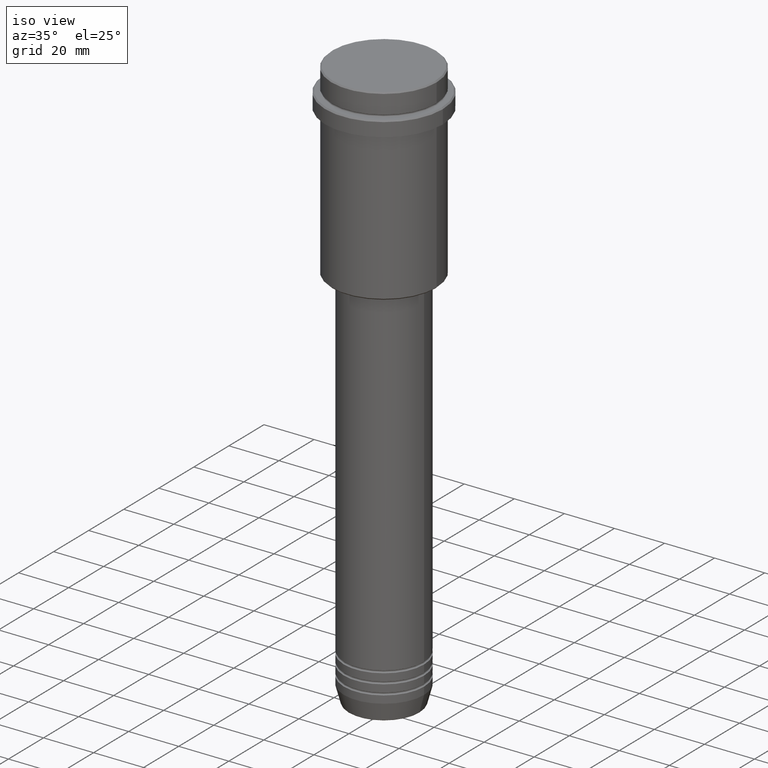
[diagram: clean part render]
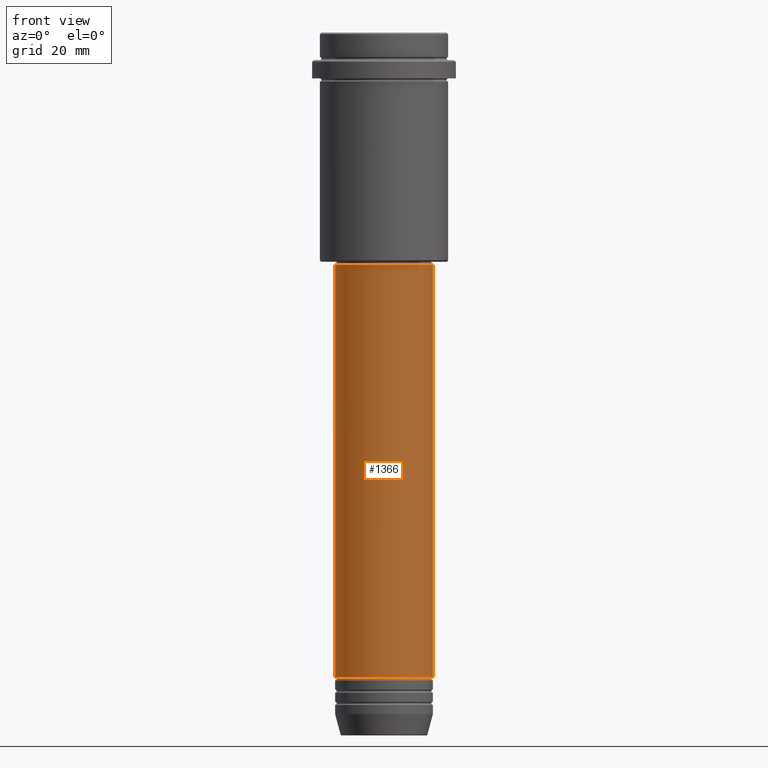
[diagram: tour spotlight — one face highlighted and labeled with its STEP entity id]
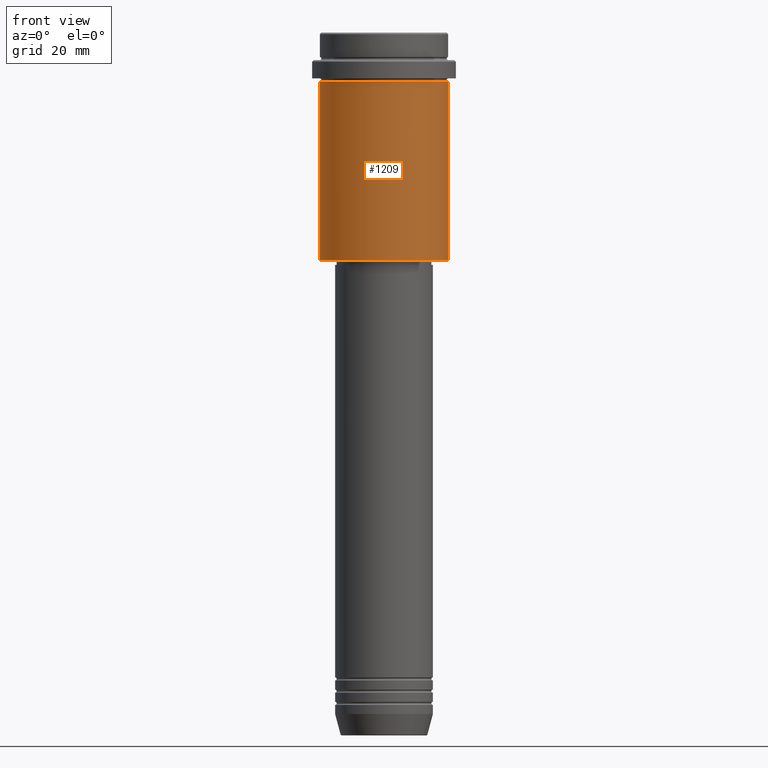
[diagram: tour spotlight — one face highlighted and labeled with its STEP entity id]
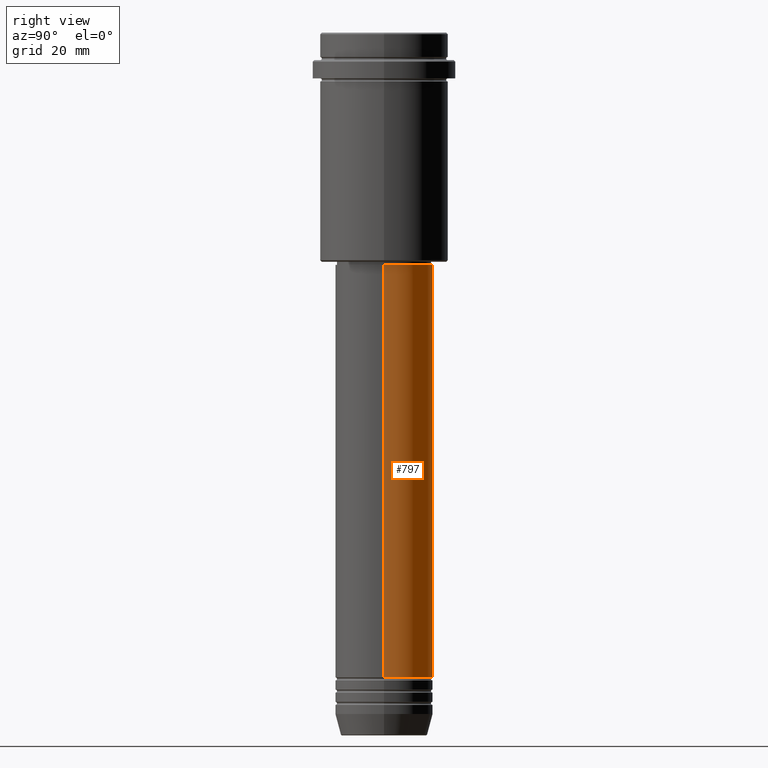
[diagram: tour spotlight — one face highlighted and labeled with its STEP entity id]
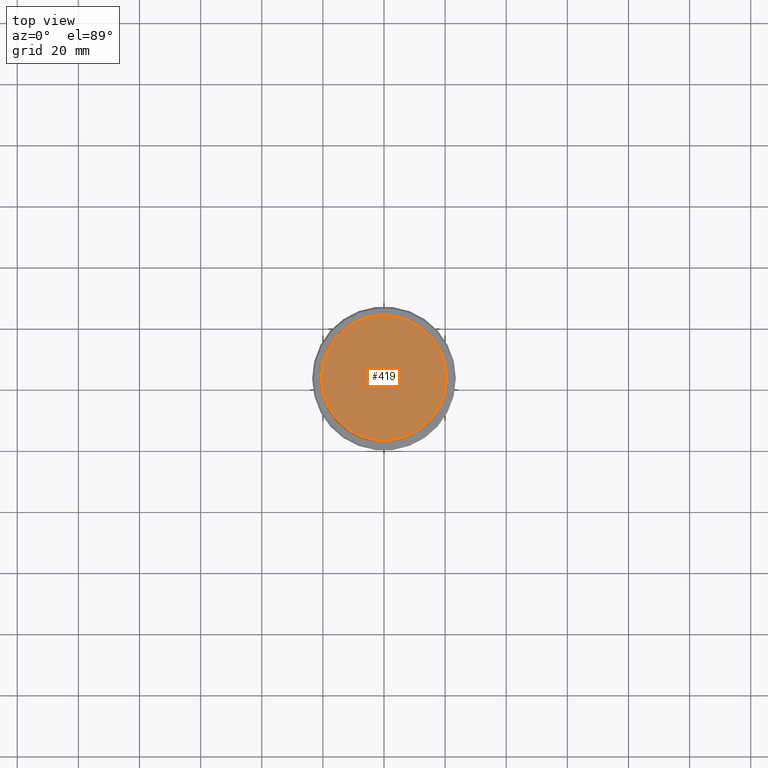
[diagram: tour spotlight — one face highlighted and labeled with its STEP entity id]
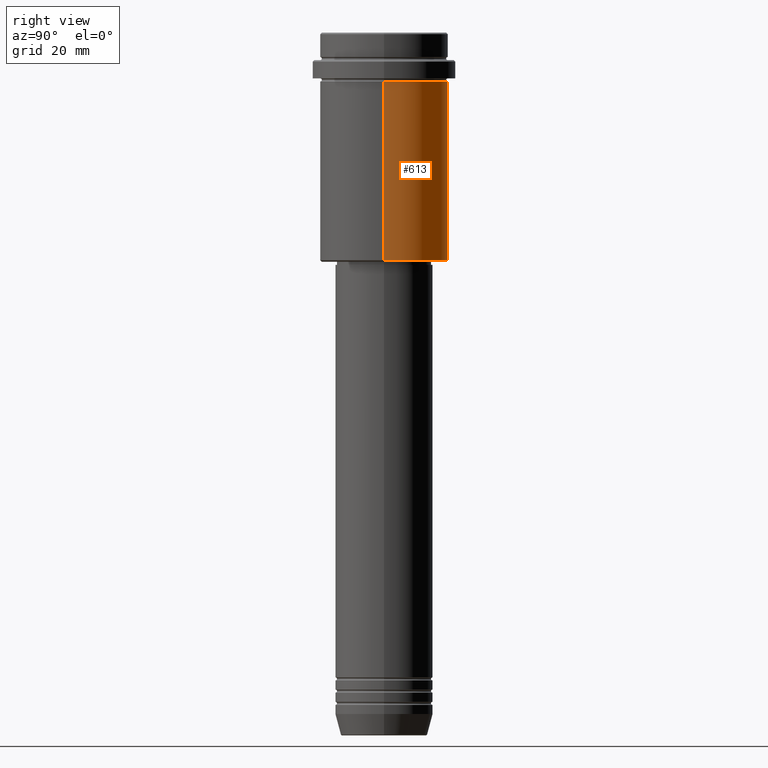
[diagram: tour spotlight — one face highlighted and labeled with its STEP entity id]
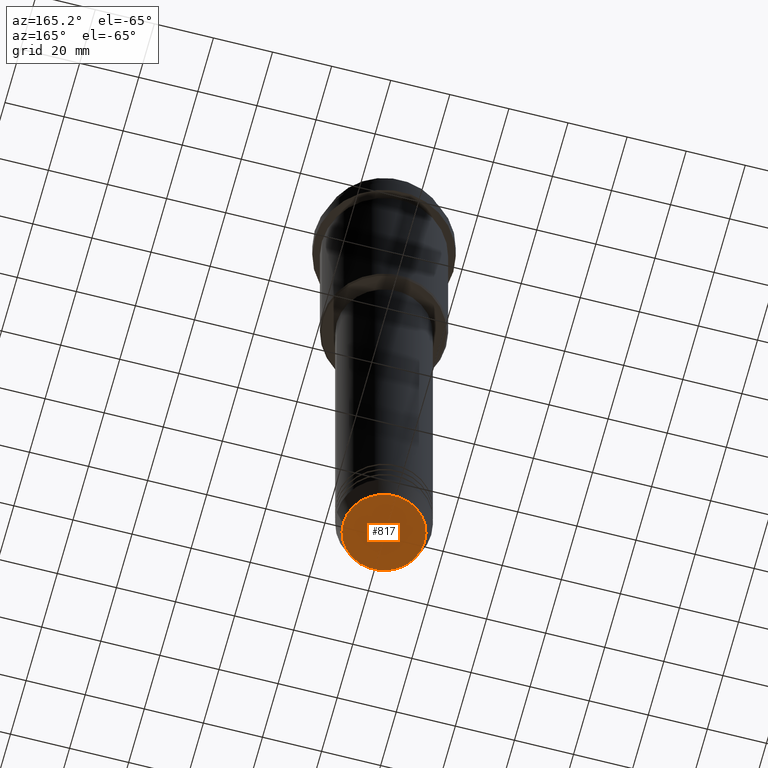
[diagram: tour spotlight — one face highlighted and labeled with its STEP entity id]
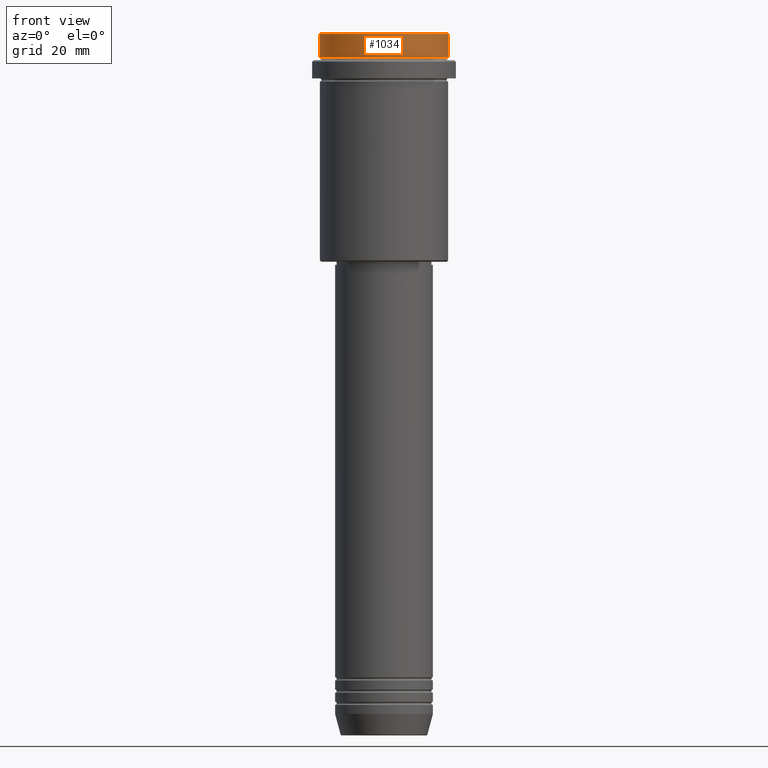
[diagram: tour spotlight — one face highlighted and labeled with its STEP entity id]
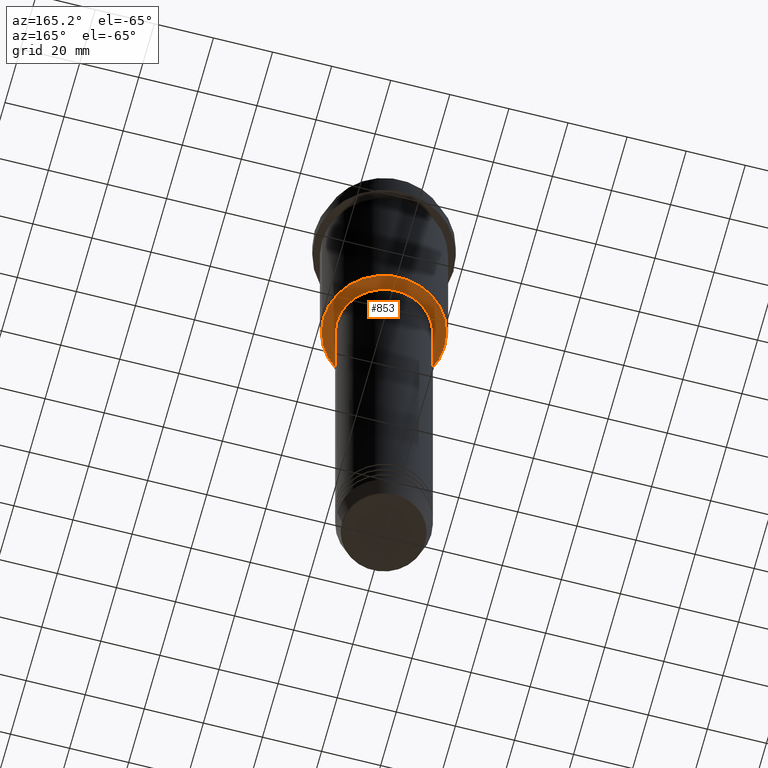
[diagram: tour spotlight — one face highlighted and labeled with its STEP entity id]
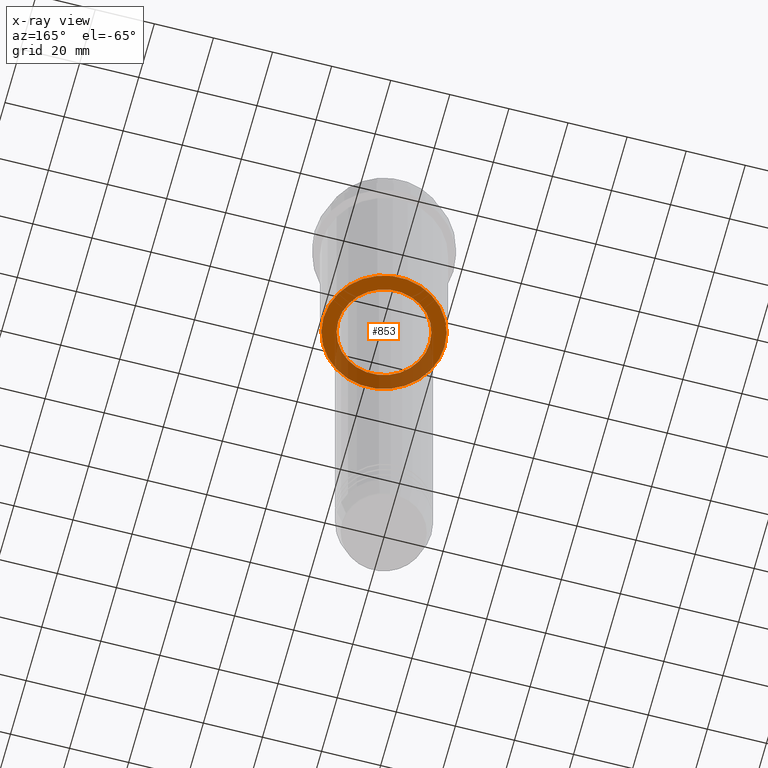
[diagram: x-ray of the same camera — body ghosted, this tour face saturated]
A machine part: a face-by-face anatomy tour. The part has 52 B-rep faces; the first image is the clean iso view, then the 8 largest visible faces are spotlighted one at a time (largest first), each with its STEP entity span.

Face 1 — front view, entity #1366. In plain terms, the highlighted cylindrical surface (partial cylindrical patch) has radius 16 mm, axis along (-0, -0, 1).
Definition (entity closure, byte-faithful):
#37 = LINE ( 'NONE', #919, #685 ) ;
#136 = EDGE_CURVE ( 'NONE', #565, #740, #1103, .T. ) ;
#163 = AXIS2_PLACEMENT_3D ( 'NONE', #534, #317, #665 ) ;
#182 = ORIENTED_EDGE ( 'NONE', *, *, #136, .F. ) ;
#204 = EDGE_CURVE ( 'NONE', #740, #1281, #1175, .T. ) ;
#281 = AXIS2_PLACEMENT_3D ( 'NONE', #1085, #449, #1200 ) ;
#317 = DIRECTION ( 'NONE',  ( -0.000000000000000000, -0.000000000000000000, 1.000000000000000000 ) ) ;
#354 = CARTESIAN_POINT ( 'NONE',  ( -16.00000000000000355, 1.959434878635765526E-15, -76.00000000000001421 ) ) ;
#385 = EDGE_LOOP ( 'NONE', ( #182, #679, #926, #865 ) ) ;
#388 = EDGE_CURVE ( 'NONE', #878, #1281, #37, .T. ) ;
#389 = CARTESIAN_POINT ( 'NONE',  ( 16.00000000000000000, 0.000000000000000000, -210.9999999999999432 ) ) ;
#449 = DIRECTION ( 'NONE',  ( -0.000000000000000000, -0.000000000000000000, 1.000000000000000000 ) ) ;
#534 = CARTESIAN_POINT ( 'NONE',  ( 0.000000000000000000, 0.000000000000000000, -76.00000000000001421 ) ) ;
#565 = VERTEX_POINT ( 'NONE', #937 ) ;
#612 = CIRCLE ( 'NONE', #281, 16.00000000000000000 ) ;
#653 = DIRECTION ( 'NONE',  ( 1.000000000000000000, 0.000000000000000000, 0.000000000000000000 ) ) ;
#663 = AXIS2_PLACEMENT_3D ( 'NONE', #760, #1191, #653 ) ;
#665 = DIRECTION ( 'NONE',  ( 1.000000000000000000, 0.000000000000000000, 0.000000000000000000 ) ) ;
#679 = ORIENTED_EDGE ( 'NONE', *, *, #1355, .T. ) ;
#685 = VECTOR ( 'NONE', #1343, 1000.000000000000000 ) ;
#728 = CARTESIAN_POINT ( 'NONE',  ( -16.00000000000000000, 1.959434878635765131E-15, 0.000000000000000000 ) ) ;
#740 = VERTEX_POINT ( 'NONE', #354 ) ;
#760 = CARTESIAN_POINT ( 'NONE',  ( 0.000000000000000000, 0.000000000000000000, 0.000000000000000000 ) ) ;
#865 = ORIENTED_EDGE ( 'NONE', *, *, #204, .F. ) ;
#878 = VERTEX_POINT ( 'NONE', #389 ) ;
#919 = CARTESIAN_POINT ( 'NONE',  ( 16.00000000000000000, 0.000000000000000000, 0.000000000000000000 ) ) ;
#926 = ORIENTED_EDGE ( 'NONE', *, *, #388, .T. ) ;
#937 = CARTESIAN_POINT ( 'NONE',  ( -16.00000000000000000, 1.959434878635765131E-15, -210.9999999999999432 ) ) ;
#982 = VECTOR ( 'NONE', #1364, 1000.000000000000000 ) ;
#986 = FACE_OUTER_BOUND ( 'NONE', #385, .T. ) ;
#1085 = CARTESIAN_POINT ( 'NONE',  ( 0.000000000000000000, 0.000000000000000000, -210.9999999999999432 ) ) ;
#1101 = CYLINDRICAL_SURFACE ( 'NONE', #663, 16.00000000000000000 ) ;
#1103 = LINE ( 'NONE', #728, #982 ) ;
#1175 = CIRCLE ( 'NONE', #163, 16.00000000000000355 ) ;
#1191 = DIRECTION ( 'NONE',  ( -0.000000000000000000, -0.000000000000000000, 1.000000000000000000 ) ) ;
#1200 = DIRECTION ( 'NONE',  ( 1.000000000000000000, 0.000000000000000000, 0.000000000000000000 ) ) ;
#1271 = CARTESIAN_POINT ( 'NONE',  ( 16.00000000000000355, 0.000000000000000000, -76.00000000000001421 ) ) ;
#1281 = VERTEX_POINT ( 'NONE', #1271 ) ;
#1343 = DIRECTION ( 'NONE',  ( -0.000000000000000000, -0.000000000000000000, 1.000000000000000000 ) ) ;
#1355 = EDGE_CURVE ( 'NONE', #565, #878, #612, .T. ) ;
#1364 = DIRECTION ( 'NONE',  ( -0.000000000000000000, -0.000000000000000000, 1.000000000000000000 ) ) ;
#1366 = ADVANCED_FACE ( 'NONE', ( #986 ), #1101, .T. ) ;

Face 2 — front view, entity #1209. In plain terms, the highlighted cylindrical surface (partial cylindrical patch) has radius 21 mm, axis along (-0, -0, 1).
Definition (entity closure, byte-faithful):
#18 = DIRECTION ( 'NONE',  ( -0.000000000000000000, -0.000000000000000000, 1.000000000000000000 ) ) ;
#22 = DIRECTION ( 'NONE',  ( 1.000000000000000000, 0.000000000000000000, 0.000000000000000000 ) ) ;
#114 = CARTESIAN_POINT ( 'NONE',  ( -20.99999999999999645, 2.571758278209441267E-15, -74.49999999999998579 ) ) ;
#120 = CIRCLE ( 'NONE', #1285, 20.99999999999999645 ) ;
#195 = ORIENTED_EDGE ( 'NONE', *, *, #485, .F. ) ;
#340 = CARTESIAN_POINT ( 'NONE',  ( 0.000000000000000000, 0.000000000000000000, -16.00000000000000355 ) ) ;
#342 = FACE_OUTER_BOUND ( 'NONE', #688, .T. ) ;
#367 = CYLINDRICAL_SURFACE ( 'NONE', #560, 20.99999999999999645 ) ;
#380 = CARTESIAN_POINT ( 'NONE',  ( -20.99999999999999645, 2.571758278209441267E-15, -16.00000000000000355 ) ) ;
#418 = VERTEX_POINT ( 'NONE', #114 ) ;
#444 = CARTESIAN_POINT ( 'NONE',  ( 20.99999999999999645, 0.000000000000000000, -74.49999999999998579 ) ) ;
#463 = VERTEX_POINT ( 'NONE', #444 ) ;
#485 = EDGE_CURVE ( 'NONE', #418, #759, #1220, .T. ) ;
#492 = AXIS2_PLACEMENT_3D ( 'NONE', #340, #18, #22 ) ;
#528 = EDGE_CURVE ( 'NONE', #418, #463, #120, .T. ) ;
#547 = EDGE_CURVE ( 'NONE', #463, #700, #707, .T. ) ;
#560 = AXIS2_PLACEMENT_3D ( 'NONE', #810, #1238, #954 ) ;
#592 = CARTESIAN_POINT ( 'NONE',  ( -20.99999999999999645, 2.571758278209441267E-15, 0.000000000000000000 ) ) ;
#688 = EDGE_LOOP ( 'NONE', ( #195, #715, #1061, #1350 ) ) ;
#700 = VERTEX_POINT ( 'NONE', #710 ) ;
#707 = LINE ( 'NONE', #1048, #1380 ) ;
#710 = CARTESIAN_POINT ( 'NONE',  ( 20.99999999999999645, 0.000000000000000000, -16.00000000000000355 ) ) ;
#715 = ORIENTED_EDGE ( 'NONE', *, *, #528, .T. ) ;
#721 = CARTESIAN_POINT ( 'NONE',  ( 0.000000000000000000, 0.000000000000000000, -74.49999999999998579 ) ) ;
#759 = VERTEX_POINT ( 'NONE', #380 ) ;
#805 = EDGE_CURVE ( 'NONE', #759, #700, #1234, .T. ) ;
#810 = CARTESIAN_POINT ( 'NONE',  ( 0.000000000000000000, 0.000000000000000000, 0.000000000000000000 ) ) ;
#911 = DIRECTION ( 'NONE',  ( -1.000000000000000000, 0.000000000000000000, 0.000000000000000000 ) ) ;
#954 = DIRECTION ( 'NONE',  ( 1.000000000000000000, 0.000000000000000000, 0.000000000000000000 ) ) ;
#1048 = CARTESIAN_POINT ( 'NONE',  ( 20.99999999999999645, 0.000000000000000000, 0.000000000000000000 ) ) ;
#1061 = ORIENTED_EDGE ( 'NONE', *, *, #547, .T. ) ;
#1146 = DIRECTION ( 'NONE',  ( -0.000000000000000000, -0.000000000000000000, 1.000000000000000000 ) ) ;
#1209 = ADVANCED_FACE ( 'NONE', ( #342 ), #367, .T. ) ;
#1220 = LINE ( 'NONE', #592, #1309 ) ;
#1234 = CIRCLE ( 'NONE', #492, 20.99999999999999645 ) ;
#1238 = DIRECTION ( 'NONE',  ( -0.000000000000000000, -0.000000000000000000, 1.000000000000000000 ) ) ;
#1285 = AXIS2_PLACEMENT_3D ( 'NONE', #721, #1327, #911 ) ;
#1309 = VECTOR ( 'NONE', #1335, 1000.000000000000000 ) ;
#1327 = DIRECTION ( 'NONE',  ( -0.000000000000000000, -0.000000000000000000, 1.000000000000000000 ) ) ;
#1335 = DIRECTION ( 'NONE',  ( -0.000000000000000000, -0.000000000000000000, 1.000000000000000000 ) ) ;
#1350 = ORIENTED_EDGE ( 'NONE', *, *, #805, .F. ) ;
#1380 = VECTOR ( 'NONE', #1146, 1000.000000000000000 ) ;

Face 3 — right view, entity #797. In plain terms, the highlighted cylindrical surface (partial cylindrical patch) has radius 16 mm, axis along (-0, -0, 1).
Definition (entity closure, byte-faithful):
#2 = EDGE_LOOP ( 'NONE', ( #806, #952, #89, #81 ) ) ;
#33 = FACE_OUTER_BOUND ( 'NONE', #2, .T. ) ;
#37 = LINE ( 'NONE', #919, #685 ) ;
#42 = CARTESIAN_POINT ( 'NONE',  ( 0.000000000000000000, 0.000000000000000000, -76.00000000000001421 ) ) ;
#81 = ORIENTED_EDGE ( 'NONE', *, *, #388, .F. ) ;
#89 = ORIENTED_EDGE ( 'NONE', *, *, #1164, .F. ) ;
#103 = AXIS2_PLACEMENT_3D ( 'NONE', #42, #1208, #140 ) ;
#136 = EDGE_CURVE ( 'NONE', #565, #740, #1103, .T. ) ;
#140 = DIRECTION ( 'NONE',  ( 1.000000000000000000, 0.000000000000000000, 0.000000000000000000 ) ) ;
#168 = CIRCLE ( 'NONE', #103, 16.00000000000000355 ) ;
#354 = CARTESIAN_POINT ( 'NONE',  ( -16.00000000000000355, 1.959434878635765526E-15, -76.00000000000001421 ) ) ;
#366 = DIRECTION ( 'NONE',  ( -0.000000000000000000, -0.000000000000000000, 1.000000000000000000 ) ) ;
#378 = CYLINDRICAL_SURFACE ( 'NONE', #634, 16.00000000000000000 ) ;
#388 = EDGE_CURVE ( 'NONE', #878, #1281, #37, .T. ) ;
#389 = CARTESIAN_POINT ( 'NONE',  ( 16.00000000000000000, 0.000000000000000000, -210.9999999999999432 ) ) ;
#541 = CIRCLE ( 'NONE', #1114, 16.00000000000000000 ) ;
#565 = VERTEX_POINT ( 'NONE', #937 ) ;
#634 = AXIS2_PLACEMENT_3D ( 'NONE', #689, #366, #1244 ) ;
#685 = VECTOR ( 'NONE', #1343, 1000.000000000000000 ) ;
#689 = CARTESIAN_POINT ( 'NONE',  ( 0.000000000000000000, 0.000000000000000000, 0.000000000000000000 ) ) ;
#695 = DIRECTION ( 'NONE',  ( 1.000000000000000000, 0.000000000000000000, 0.000000000000000000 ) ) ;
#728 = CARTESIAN_POINT ( 'NONE',  ( -16.00000000000000000, 1.959434878635765131E-15, 0.000000000000000000 ) ) ;
#740 = VERTEX_POINT ( 'NONE', #354 ) ;
#797 = ADVANCED_FACE ( 'NONE', ( #33 ), #378, .T. ) ;
#806 = ORIENTED_EDGE ( 'NONE', *, *, #1199, .T. ) ;
#878 = VERTEX_POINT ( 'NONE', #389 ) ;
#906 = CARTESIAN_POINT ( 'NONE',  ( 0.000000000000000000, 0.000000000000000000, -210.9999999999999432 ) ) ;
#919 = CARTESIAN_POINT ( 'NONE',  ( 16.00000000000000000, 0.000000000000000000, 0.000000000000000000 ) ) ;
#937 = CARTESIAN_POINT ( 'NONE',  ( -16.00000000000000000, 1.959434878635765131E-15, -210.9999999999999432 ) ) ;
#952 = ORIENTED_EDGE ( 'NONE', *, *, #136, .T. ) ;
#982 = VECTOR ( 'NONE', #1364, 1000.000000000000000 ) ;
#1103 = LINE ( 'NONE', #728, #982 ) ;
#1114 = AXIS2_PLACEMENT_3D ( 'NONE', #906, #1232, #695 ) ;
#1164 = EDGE_CURVE ( 'NONE', #1281, #740, #168, .T. ) ;
#1199 = EDGE_CURVE ( 'NONE', #878, #565, #541, .T. ) ;
#1208 = DIRECTION ( 'NONE',  ( -0.000000000000000000, -0.000000000000000000, 1.000000000000000000 ) ) ;
#1232 = DIRECTION ( 'NONE',  ( -0.000000000000000000, -0.000000000000000000, 1.000000000000000000 ) ) ;
#1244 = DIRECTION ( 'NONE',  ( 1.000000000000000000, 0.000000000000000000, 0.000000000000000000 ) ) ;
#1271 = CARTESIAN_POINT ( 'NONE',  ( 16.00000000000000355, 0.000000000000000000, -76.00000000000001421 ) ) ;
#1281 = VERTEX_POINT ( 'NONE', #1271 ) ;
#1343 = DIRECTION ( 'NONE',  ( -0.000000000000000000, -0.000000000000000000, 1.000000000000000000 ) ) ;
#1364 = DIRECTION ( 'NONE',  ( -0.000000000000000000, -0.000000000000000000, 1.000000000000000000 ) ) ;

Face 4 — top view, entity #419. In plain terms, the highlighted planar face has unit normal (0, -0, 1).
Definition (entity closure, byte-faithful):
#144 = CARTESIAN_POINT ( 'NONE',  ( 20.50000000000001776, 2.541142108230758663E-15, 0.000000000000000000 ) ) ;
#173 = DIRECTION ( 'NONE',  ( 1.000000000000000000, 0.000000000000000000, 0.000000000000000000 ) ) ;
#205 = EDGE_CURVE ( 'NONE', #376, #437, #339, .T. ) ;
#308 = DIRECTION ( 'NONE',  ( -0.000000000000000000, -0.000000000000000000, 1.000000000000000000 ) ) ;
#339 = CIRCLE ( 'NONE', #537, 20.50000000000001776 ) ;
#376 = VERTEX_POINT ( 'NONE', #144 ) ;
#419 = ADVANCED_FACE ( 'NONE', ( #1318 ), #1118, .T. ) ;
#429 = AXIS2_PLACEMENT_3D ( 'NONE', #1090, #667, #173 ) ;
#437 = VERTEX_POINT ( 'NONE', #840 ) ;
#441 = DIRECTION ( 'NONE',  ( 1.000000000000000000, 0.000000000000000000, 0.000000000000000000 ) ) ;
#537 = AXIS2_PLACEMENT_3D ( 'NONE', #1098, #1416, #441 ) ;
#546 = DIRECTION ( 'NONE',  ( 1.000000000000000000, 0.000000000000000000, 0.000000000000000000 ) ) ;
#632 = ORIENTED_EDGE ( 'NONE', *, *, #956, .T. ) ;
#667 = DIRECTION ( 'NONE',  ( 0.000000000000000000, -0.000000000000000000, 1.000000000000000000 ) ) ;
#765 = ORIENTED_EDGE ( 'NONE', *, *, #205, .T. ) ;
#766 = CIRCLE ( 'NONE', #1092, 20.50000000000001776 ) ;
#840 = CARTESIAN_POINT ( 'NONE',  ( -20.50000000000001776, 0.000000000000000000, 0.000000000000000000 ) ) ;
#956 = EDGE_CURVE ( 'NONE', #437, #376, #766, .T. ) ;
#1073 = CARTESIAN_POINT ( 'NONE',  ( 0.000000000000000000, 0.000000000000000000, 0.000000000000000000 ) ) ;
#1090 = CARTESIAN_POINT ( 'NONE',  ( 0.000000000000000000, 0.000000000000000000, 0.000000000000000000 ) ) ;
#1092 = AXIS2_PLACEMENT_3D ( 'NONE', #1073, #308, #546 ) ;
#1098 = CARTESIAN_POINT ( 'NONE',  ( 0.000000000000000000, 0.000000000000000000, 0.000000000000000000 ) ) ;
#1118 = PLANE ( 'NONE',  #429 ) ;
#1149 = EDGE_LOOP ( 'NONE', ( #632, #765 ) ) ;
#1318 = FACE_OUTER_BOUND ( 'NONE', #1149, .T. ) ;
#1416 = DIRECTION ( 'NONE',  ( -0.000000000000000000, -0.000000000000000000, 1.000000000000000000 ) ) ;

Face 5 — right view, entity #613. In plain terms, the highlighted cylindrical surface (partial cylindrical patch) has radius 21 mm, axis along (-0, -0, 1).
Definition (entity closure, byte-faithful):
#45 = ORIENTED_EDGE ( 'NONE', *, *, #485, .T. ) ;
#98 = CARTESIAN_POINT ( 'NONE',  ( 0.000000000000000000, 0.000000000000000000, -74.49999999999998579 ) ) ;
#114 = CARTESIAN_POINT ( 'NONE',  ( -20.99999999999999645, 2.571758278209441267E-15, -74.49999999999998579 ) ) ;
#380 = CARTESIAN_POINT ( 'NONE',  ( -20.99999999999999645, 2.571758278209441267E-15, -16.00000000000000355 ) ) ;
#381 = EDGE_LOOP ( 'NONE', ( #1233, #45, #1127, #816 ) ) ;
#418 = VERTEX_POINT ( 'NONE', #114 ) ;
#444 = CARTESIAN_POINT ( 'NONE',  ( 20.99999999999999645, 0.000000000000000000, -74.49999999999998579 ) ) ;
#455 = FACE_OUTER_BOUND ( 'NONE', #381, .T. ) ;
#463 = VERTEX_POINT ( 'NONE', #444 ) ;
#473 = AXIS2_PLACEMENT_3D ( 'NONE', #718, #606, #942 ) ;
#485 = EDGE_CURVE ( 'NONE', #418, #759, #1220, .T. ) ;
#547 = EDGE_CURVE ( 'NONE', #463, #700, #707, .T. ) ;
#549 = CARTESIAN_POINT ( 'NONE',  ( 0.000000000000000000, 0.000000000000000000, 0.000000000000000000 ) ) ;
#592 = CARTESIAN_POINT ( 'NONE',  ( -20.99999999999999645, 2.571758278209441267E-15, 0.000000000000000000 ) ) ;
#606 = DIRECTION ( 'NONE',  ( -0.000000000000000000, -0.000000000000000000, 1.000000000000000000 ) ) ;
#613 = ADVANCED_FACE ( 'NONE', ( #455 ), #1081, .T. ) ;
#700 = VERTEX_POINT ( 'NONE', #710 ) ;
#707 = LINE ( 'NONE', #1048, #1380 ) ;
#710 = CARTESIAN_POINT ( 'NONE',  ( 20.99999999999999645, 0.000000000000000000, -16.00000000000000355 ) ) ;
#718 = CARTESIAN_POINT ( 'NONE',  ( 0.000000000000000000, 0.000000000000000000, -16.00000000000000355 ) ) ;
#745 = AXIS2_PLACEMENT_3D ( 'NONE', #549, #983, #1105 ) ;
#759 = VERTEX_POINT ( 'NONE', #380 ) ;
#769 = CIRCLE ( 'NONE', #863, 20.99999999999999645 ) ;
#816 = ORIENTED_EDGE ( 'NONE', *, *, #547, .F. ) ;
#863 = AXIS2_PLACEMENT_3D ( 'NONE', #98, #1018, #1409 ) ;
#942 = DIRECTION ( 'NONE',  ( 1.000000000000000000, 0.000000000000000000, 0.000000000000000000 ) ) ;
#983 = DIRECTION ( 'NONE',  ( -0.000000000000000000, -0.000000000000000000, 1.000000000000000000 ) ) ;
#1018 = DIRECTION ( 'NONE',  ( -0.000000000000000000, -0.000000000000000000, 1.000000000000000000 ) ) ;
#1048 = CARTESIAN_POINT ( 'NONE',  ( 20.99999999999999645, 0.000000000000000000, 0.000000000000000000 ) ) ;
#1081 = CYLINDRICAL_SURFACE ( 'NONE', #745, 20.99999999999999645 ) ;
#1105 = DIRECTION ( 'NONE',  ( 1.000000000000000000, 0.000000000000000000, 0.000000000000000000 ) ) ;
#1127 = ORIENTED_EDGE ( 'NONE', *, *, #1351, .F. ) ;
#1146 = DIRECTION ( 'NONE',  ( -0.000000000000000000, -0.000000000000000000, 1.000000000000000000 ) ) ;
#1220 = LINE ( 'NONE', #592, #1309 ) ;
#1233 = ORIENTED_EDGE ( 'NONE', *, *, #1369, .T. ) ;
#1309 = VECTOR ( 'NONE', #1335, 1000.000000000000000 ) ;
#1335 = DIRECTION ( 'NONE',  ( -0.000000000000000000, -0.000000000000000000, 1.000000000000000000 ) ) ;
#1351 = EDGE_CURVE ( 'NONE', #700, #759, #1385, .T. ) ;
#1369 = EDGE_CURVE ( 'NONE', #463, #418, #769, .T. ) ;
#1380 = VECTOR ( 'NONE', #1146, 1000.000000000000000 ) ;
#1385 = CIRCLE ( 'NONE', #473, 20.99999999999999645 ) ;
#1409 = DIRECTION ( 'NONE',  ( -1.000000000000000000, 0.000000000000000000, 0.000000000000000000 ) ) ;

Face 6 — auxiliary view, entity #817. In plain terms, the highlighted planar face has unit normal (0, -0, 1).
Definition (entity closure, byte-faithful):
#50 = EDGE_CURVE ( 'NONE', #326, #1079, #1180, .T. ) ;
#176 = EDGE_LOOP ( 'NONE', ( #1182, #526 ) ) ;
#181 = CARTESIAN_POINT ( 'NONE',  ( 0.000000000000000000, 0.000000000000000000, -230.0000000000000284 ) ) ;
#186 = AXIS2_PLACEMENT_3D ( 'NONE', #588, #359, #802 ) ;
#189 = AXIS2_PLACEMENT_3D ( 'NONE', #181, #410, #1275 ) ;
#214 = CIRCLE ( 'NONE', #189, 13.74069215899266361 ) ;
#239 = PLANE ( 'NONE',  #186 ) ;
#326 = VERTEX_POINT ( 'NONE', #1148 ) ;
#359 = DIRECTION ( 'NONE',  ( 0.000000000000000000, -0.000000000000000000, 1.000000000000000000 ) ) ;
#410 = DIRECTION ( 'NONE',  ( 0.000000000000000000, 0.000000000000000000, -1.000000000000000000 ) ) ;
#526 = ORIENTED_EDGE ( 'NONE', *, *, #1322, .T. ) ;
#571 = FACE_OUTER_BOUND ( 'NONE', #176, .T. ) ;
#588 = CARTESIAN_POINT ( 'NONE',  ( 0.000000000000000000, 0.000000000000000000, -230.0000000000000284 ) ) ;
#773 = CARTESIAN_POINT ( 'NONE',  ( 0.000000000000000000, 0.000000000000000000, -230.0000000000000284 ) ) ;
#802 = DIRECTION ( 'NONE',  ( 1.000000000000000000, 0.000000000000000000, 0.000000000000000000 ) ) ;
#817 = ADVANCED_FACE ( 'NONE', ( #571 ), #239, .F. ) ;
#1006 = AXIS2_PLACEMENT_3D ( 'NONE', #773, #1284, #1074 ) ;
#1025 = CARTESIAN_POINT ( 'NONE',  ( -13.74069215899266361, 1.712322416342416775E-15, -230.0000000000000284 ) ) ;
#1074 = DIRECTION ( 'NONE',  ( 1.000000000000000000, 0.000000000000000000, 0.000000000000000000 ) ) ;
#1079 = VERTEX_POINT ( 'NONE', #1025 ) ;
#1148 = CARTESIAN_POINT ( 'NONE',  ( 13.74069215899266361, 0.000000000000000000, -230.0000000000000284 ) ) ;
#1180 = CIRCLE ( 'NONE', #1006, 13.74069215899266361 ) ;
#1182 = ORIENTED_EDGE ( 'NONE', *, *, #50, .T. ) ;
#1275 = DIRECTION ( 'NONE',  ( 1.000000000000000000, 0.000000000000000000, 0.000000000000000000 ) ) ;
#1284 = DIRECTION ( 'NONE',  ( 0.000000000000000000, 0.000000000000000000, -1.000000000000000000 ) ) ;
#1322 = EDGE_CURVE ( 'NONE', #1079, #326, #214, .T. ) ;

Face 7 — front view, entity #1034. In plain terms, the highlighted cylindrical surface (partial cylindrical patch) has radius 21 mm, axis along (-0, -0, 1).
Definition (entity closure, byte-faithful):
#54 = AXIS2_PLACEMENT_3D ( 'NONE', #506, #536, #989 ) ;
#113 = DIRECTION ( 'NONE',  ( 1.000000000000000000, 0.000000000000000000, 0.000000000000000000 ) ) ;
#122 = CIRCLE ( 'NONE', #539, 20.99999999999999645 ) ;
#125 = CARTESIAN_POINT ( 'NONE',  ( 0.000000000000000000, 0.000000000000000000, -0.5000000000000073275 ) ) ;
#150 = ORIENTED_EDGE ( 'NONE', *, *, #907, .F. ) ;
#187 = AXIS2_PLACEMENT_3D ( 'NONE', #912, #799, #1376 ) ;
#280 = ORIENTED_EDGE ( 'NONE', *, *, #832, .T. ) ;
#335 = CARTESIAN_POINT ( 'NONE',  ( 20.99999999999999645, 0.000000000000000000, -0.5000000000000073275 ) ) ;
#409 = VERTEX_POINT ( 'NONE', #335 ) ;
#460 = CARTESIAN_POINT ( 'NONE',  ( 20.99999999999999645, 0.000000000000000000, -7.999999999999998224 ) ) ;
#475 = DIRECTION ( 'NONE',  ( -0.000000000000000000, -0.000000000000000000, 1.000000000000000000 ) ) ;
#499 = ORIENTED_EDGE ( 'NONE', *, *, #1014, .T. ) ;
#506 = CARTESIAN_POINT ( 'NONE',  ( 0.000000000000000000, 0.000000000000000000, -7.999999999999998224 ) ) ;
#536 = DIRECTION ( 'NONE',  ( -0.000000000000000000, -0.000000000000000000, 1.000000000000000000 ) ) ;
#539 = AXIS2_PLACEMENT_3D ( 'NONE', #125, #910, #113 ) ;
#559 = VECTOR ( 'NONE', #475, 1000.000000000000000 ) ;
#569 = CARTESIAN_POINT ( 'NONE',  ( -20.99999999999999645, 2.571758278209441267E-15, -7.999999999999998224 ) ) ;
#637 = EDGE_LOOP ( 'NONE', ( #150, #280, #1058, #499 ) ) ;
#651 = VERTEX_POINT ( 'NONE', #569 ) ;
#664 = CARTESIAN_POINT ( 'NONE',  ( 20.99999999999999645, 0.000000000000000000, 0.000000000000000000 ) ) ;
#777 = FACE_OUTER_BOUND ( 'NONE', #637, .T. ) ;
#779 = LINE ( 'NONE', #841, #1405 ) ;
#792 = CYLINDRICAL_SURFACE ( 'NONE', #187, 20.99999999999999645 ) ;
#799 = DIRECTION ( 'NONE',  ( -0.000000000000000000, -0.000000000000000000, 1.000000000000000000 ) ) ;
#804 = LINE ( 'NONE', #664, #559 ) ;
#832 = EDGE_CURVE ( 'NONE', #651, #1165, #1023, .T. ) ;
#841 = CARTESIAN_POINT ( 'NONE',  ( -20.99999999999999645, 2.571758278209441267E-15, 0.000000000000000000 ) ) ;
#907 = EDGE_CURVE ( 'NONE', #651, #1316, #779, .T. ) ;
#910 = DIRECTION ( 'NONE',  ( 0.000000000000000000, 0.000000000000000000, -1.000000000000000000 ) ) ;
#912 = CARTESIAN_POINT ( 'NONE',  ( 0.000000000000000000, 0.000000000000000000, 0.000000000000000000 ) ) ;
#989 = DIRECTION ( 'NONE',  ( 1.000000000000000000, 0.000000000000000000, 0.000000000000000000 ) ) ;
#1014 = EDGE_CURVE ( 'NONE', #409, #1316, #122, .T. ) ;
#1023 = CIRCLE ( 'NONE', #54, 20.99999999999999645 ) ;
#1033 = EDGE_CURVE ( 'NONE', #1165, #409, #804, .T. ) ;
#1034 = ADVANCED_FACE ( 'NONE', ( #777 ), #792, .T. ) ;
#1038 = DIRECTION ( 'NONE',  ( -0.000000000000000000, -0.000000000000000000, 1.000000000000000000 ) ) ;
#1058 = ORIENTED_EDGE ( 'NONE', *, *, #1033, .T. ) ;
#1165 = VERTEX_POINT ( 'NONE', #460 ) ;
#1246 = CARTESIAN_POINT ( 'NONE',  ( -20.99999999999999645, 2.571758278209441267E-15, -0.5000000000000073275 ) ) ;
#1316 = VERTEX_POINT ( 'NONE', #1246 ) ;
#1376 = DIRECTION ( 'NONE',  ( 1.000000000000000000, 0.000000000000000000, 0.000000000000000000 ) ) ;
#1405 = VECTOR ( 'NONE', #1038, 1000.000000000000000 ) ;

Face 8 — auxiliary view, entity #853. An x-ray twin of the same camera follows (body ghosted, this face saturated) — the face is partly hidden behind the body. In plain terms, the highlighted planar face has unit normal (0, 0, -1).
Definition (entity closure, byte-faithful):
#1 = DIRECTION ( 'NONE',  ( -0.000000000000000000, -0.000000000000000000, 1.000000000000000000 ) ) ;
#13 = PLANE ( 'NONE',  #704 ) ;
#24 = FACE_BOUND ( 'NONE', #532, .T. ) ;
#59 = EDGE_CURVE ( 'NONE', #171, #1028, #425, .T. ) ;
#91 = DIRECTION ( 'NONE',  ( 1.000000000000000000, 0.000000000000000000, 0.000000000000000000 ) ) ;
#171 = VERTEX_POINT ( 'NONE', #987 ) ;
#207 = CARTESIAN_POINT ( 'NONE',  ( 20.49999999999998934, 0.000000000000000000, -75.00000000000001421 ) ) ;
#227 = CIRCLE ( 'NONE', #1211, 20.49999999999998934 ) ;
#248 = CIRCLE ( 'NONE', #1063, 15.50000000000000000 ) ;
#257 = DIRECTION ( 'NONE',  ( 0.000000000000000000, 0.000000000000000000, -1.000000000000000000 ) ) ;
#346 = CIRCLE ( 'NONE', #1310, 20.49999999999998934 ) ;
#362 = DIRECTION ( 'NONE',  ( -1.000000000000000000, 0.000000000000000000, 0.000000000000000000 ) ) ;
#425 = CIRCLE ( 'NONE', #812, 15.50000000000000000 ) ;
#432 = CARTESIAN_POINT ( 'NONE',  ( 0.000000000000000000, 0.000000000000000000, -75.00000000000001421 ) ) ;
#469 = CARTESIAN_POINT ( 'NONE',  ( 0.000000000000000000, 21.00000000000000000, -75.00000000000001421 ) ) ;
#532 = EDGE_LOOP ( 'NONE', ( #962, #720 ) ) ;
#591 = DIRECTION ( 'NONE',  ( -1.000000000000000000, 0.000000000000000000, -0.000000000000000000 ) ) ;
#608 = VERTEX_POINT ( 'NONE', #207 ) ;
#631 = EDGE_CURVE ( 'NONE', #1028, #171, #248, .T. ) ;
#643 = CARTESIAN_POINT ( 'NONE',  ( 0.000000000000000000, 0.000000000000000000, -75.00000000000001421 ) ) ;
#673 = CARTESIAN_POINT ( 'NONE',  ( 15.50000000000000000, 0.000000000000000000, -75.00000000000001421 ) ) ;
#704 = AXIS2_PLACEMENT_3D ( 'NONE', #469, #908, #591 ) ;
#709 = EDGE_LOOP ( 'NONE', ( #842, #1037 ) ) ;
#720 = ORIENTED_EDGE ( 'NONE', *, *, #59, .T. ) ;
#752 = CARTESIAN_POINT ( 'NONE',  ( 0.000000000000000000, 0.000000000000000000, -75.00000000000001421 ) ) ;
#758 = EDGE_CURVE ( 'NONE', #985, #608, #227, .T. ) ;
#776 = DIRECTION ( 'NONE',  ( 1.000000000000000000, 0.000000000000000000, 0.000000000000000000 ) ) ;
#812 = AXIS2_PLACEMENT_3D ( 'NONE', #752, #1185, #91 ) ;
#842 = ORIENTED_EDGE ( 'NONE', *, *, #880, .T. ) ;
#853 = ADVANCED_FACE ( 'NONE', ( #1140, #24 ), #13, .T. ) ;
#880 = EDGE_CURVE ( 'NONE', #608, #985, #346, .T. ) ;
#908 = DIRECTION ( 'NONE',  ( 0.000000000000000000, 0.000000000000000000, -1.000000000000000000 ) ) ;
#909 = CARTESIAN_POINT ( 'NONE',  ( 0.000000000000000000, 0.000000000000000000, -75.00000000000001421 ) ) ;
#962 = ORIENTED_EDGE ( 'NONE', *, *, #631, .T. ) ;
#966 = DIRECTION ( 'NONE',  ( 0.000000000000000000, 0.000000000000000000, -1.000000000000000000 ) ) ;
#985 = VERTEX_POINT ( 'NONE', #1207 ) ;
#987 = CARTESIAN_POINT ( 'NONE',  ( -15.50000000000000000, 1.898202538678397557E-15, -75.00000000000001421 ) ) ;
#1028 = VERTEX_POINT ( 'NONE', #673 ) ;
#1037 = ORIENTED_EDGE ( 'NONE', *, *, #758, .T. ) ;
#1063 = AXIS2_PLACEMENT_3D ( 'NONE', #432, #1, #776 ) ;
#1140 = FACE_OUTER_BOUND ( 'NONE', #709, .T. ) ;
#1185 = DIRECTION ( 'NONE',  ( -0.000000000000000000, -0.000000000000000000, 1.000000000000000000 ) ) ;
#1207 = CARTESIAN_POINT ( 'NONE',  ( -20.49999999999998934, 2.541142108230757085E-15, -75.00000000000001421 ) ) ;
#1211 = AXIS2_PLACEMENT_3D ( 'NONE', #909, #257, #362 ) ;
#1267 = DIRECTION ( 'NONE',  ( -1.000000000000000000, 0.000000000000000000, 0.000000000000000000 ) ) ;
#1310 = AXIS2_PLACEMENT_3D ( 'NONE', #643, #966, #1267 ) ;